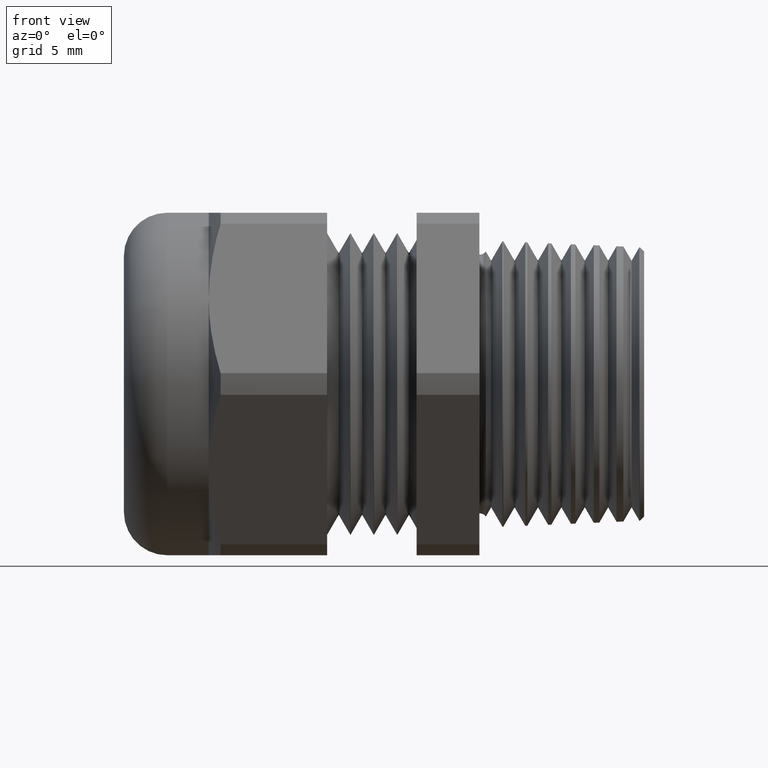
[diagram: clean part render]
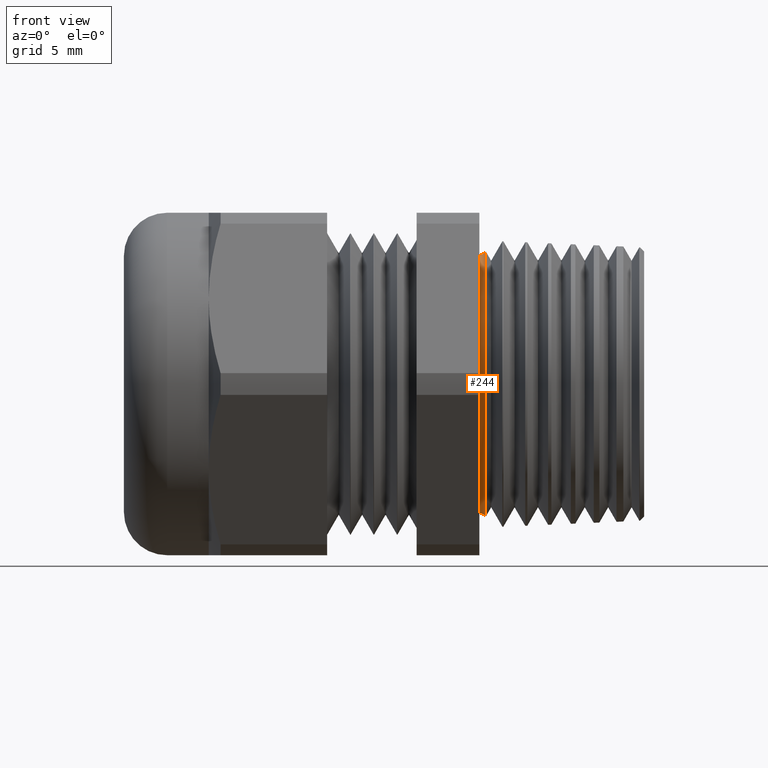
[diagram: same view with one face highlighted and labeled with its STEP entity id]
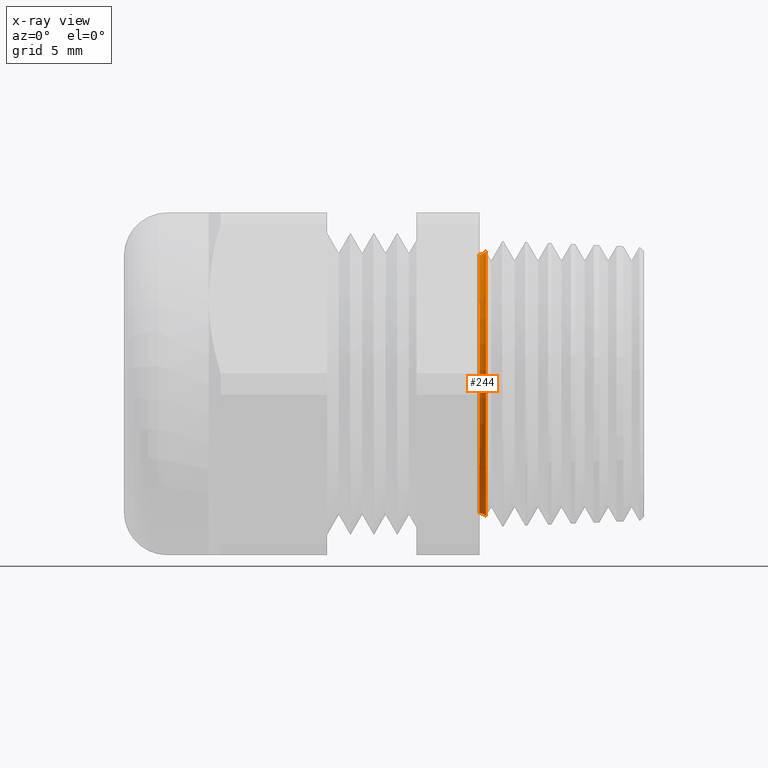
[diagram: x-ray of the same camera — body ghosted, the highlighted face saturated]
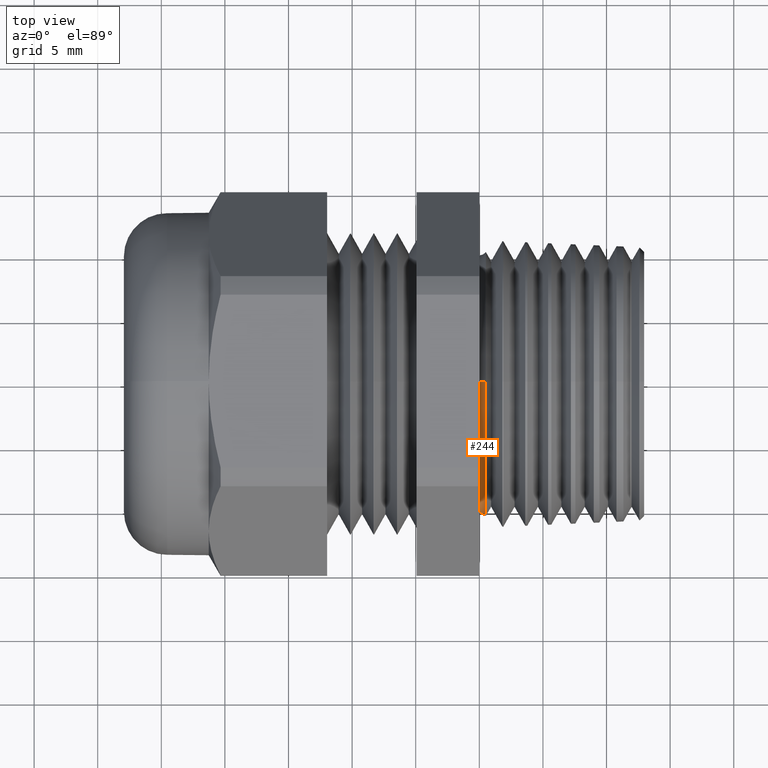
[diagram: same view with one face highlighted and labeled with its STEP entity id]
A machine part, front view. The second image highlights one B-rep face of the part: STEP entity #244.
The next image is the same camera in x-ray: the body ghosted, the highlighted face saturated — about 0% of this face is hidden behind the body in this view.
A second angle (top view) of the same face is appended — the face is thin or edge-on in the first view.
In plain terms, the highlighted toroidal blend (fillet) surface has major radius 10.795 mm and minor (blend) radius 0.635 mm.
Its self-contained STEP definition (entity closure, byte-faithful):
#240 = EDGE_CURVE ( 'NONE', #241, #318, #1651, .T. ) ;
#241 = VERTEX_POINT ( 'NONE', #1646 ) ;
#244 = ADVANCED_FACE ( 'NONE', ( #1640 ), #1639, .F. ) ;
#245 = EDGE_LOOP ( 'NONE', ( #246, #247, #273, #274 ) ) ;
#246 = ORIENTED_EDGE ( 'NONE', *, *, #240, .T. ) ;
#247 = ORIENTED_EDGE ( 'NONE', *, *, #248, .T. ) ;
#248 = EDGE_CURVE ( 'NONE', #318, #315, #1633, .T. ) ;
#249 = EDGE_CURVE ( 'NONE', #259, #315, #1629, .T. ) ;
#259 = VERTEX_POINT ( 'NONE', #1673 ) ;
#273 = ORIENTED_EDGE ( 'NONE', *, *, #249, .F. ) ;
#274 = ORIENTED_EDGE ( 'NONE', *, *, #275, .F. ) ;
#275 = EDGE_CURVE ( 'NONE', #241, #259, #1710, .T. ) ;
#315 = VERTEX_POINT ( 'NONE', #1768 ) ;
#318 = VERTEX_POINT ( 'NONE', #1762 ) ;
#1625 = DIRECTION ( 'NONE',  ( 0.0000000000000000000, 0.0000000000000000000, -1.000000000000000000 ) ) ;
#1626 = DIRECTION ( 'NONE',  ( 0.0000000000000000000, -1.000000000000000000, 0.0000000000000000000 ) ) ;
#1627 = CARTESIAN_POINT ( 'NONE',  ( 0.0000000000000000000, 0.0000000000000000000, -0.4250000000000000400 ) ) ;
#1628 = AXIS2_PLACEMENT_3D ( 'NONE', #1627, #1626, #1625 ) ;
#1629 = CIRCLE ( 'NONE', #1628, 0.02499999999999980000 ) ;
#1630 = DIRECTION ( 'NONE',  ( 0.0000000000000000000, 0.0000000000000000000, -1.000000000000000000 ) ) ;
#1631 = DIRECTION ( 'NONE',  ( 1.000000000000000000, 0.0000000000000000000, 0.0000000000000000000 ) ) ;
#1632 = AXIS2_PLACEMENT_3D ( 'NONE', #1638, #1631, #1630 ) ;
#1633 = CIRCLE ( 'NONE', #1632, 0.4000000000000002400 ) ;
#1634 = DIRECTION ( 'NONE',  ( 0.0000000000000000000, 0.0000000000000000000, -1.000000000000000000 ) ) ;
#1635 = DIRECTION ( 'NONE',  ( 1.000000000000000000, 0.0000000000000000000, 0.0000000000000000000 ) ) ;
#1636 = CARTESIAN_POINT ( 'NONE',  ( 0.0000000000000000000, 0.0000000000000000000, 0.0000000000000000000 ) ) ;
#1637 = AXIS2_PLACEMENT_3D ( 'NONE', #1636, #1635, #1634 ) ;
#1638 = CARTESIAN_POINT ( 'NONE',  ( -3.061616997868362800E-018, 0.0000000000000000000, 0.0000000000000000000 ) ) ;
#1639 = TOROIDAL_SURFACE ( 'NONE', #1637, 0.4250000000000000400, 0.02499999999999983500 ) ;
#1640 = FACE_OUTER_BOUND ( 'NONE', #245, .T. ) ;
#1646 = CARTESIAN_POINT ( 'NONE',  ( 0.02011669327523419500, 0.0000000000000000000, 0.4101568651670146100 ) ) ;
#1647 = DIRECTION ( 'NONE',  ( 0.0000000000000000000, 1.224646799147355700E-016, 1.000000000000000000 ) ) ;
#1648 = DIRECTION ( 'NONE',  ( 0.0000000000000000000, 1.000000000000000000, -1.224646799147353200E-016 ) ) ;
#1649 = CARTESIAN_POINT ( 'NONE',  ( 0.0000000000000000000, 5.204748896376251900E-017, 0.4250000000000000400 ) ) ;
#1650 = AXIS2_PLACEMENT_3D ( 'NONE', #1649, #1648, #1647 ) ;
#1651 = CIRCLE ( 'NONE', #1650, 0.02499999999999980000 ) ;
#1673 = CARTESIAN_POINT ( 'NONE',  ( 0.02011669327523419500, 5.022972920750969100E-017, -0.4101568651670146100 ) ) ;
#1706 = DIRECTION ( 'NONE',  ( 0.0000000000000000000, 0.0000000000000000000, 1.000000000000000000 ) ) ;
#1707 = DIRECTION ( 'NONE',  ( 1.000000000000000000, 0.0000000000000000000, 0.0000000000000000000 ) ) ;
#1708 = CARTESIAN_POINT ( 'NONE',  ( 0.02011669327523419500, 0.0000000000000000000, 0.0000000000000000000 ) ) ;
#1709 = AXIS2_PLACEMENT_3D ( 'NONE', #1708, #1707, #1706 ) ;
#1710 = CIRCLE ( 'NONE', #1709, 0.4101568651670146100 ) ;
#1762 = CARTESIAN_POINT ( 'NONE',  ( -3.061616997868367000E-018, 4.898587196589415500E-017, 0.4000000000000002400 ) ) ;
#1768 = CARTESIAN_POINT ( 'NONE',  ( -3.061616997868367000E-018, 0.0000000000000000000, -0.4000000000000002400 ) ) ;